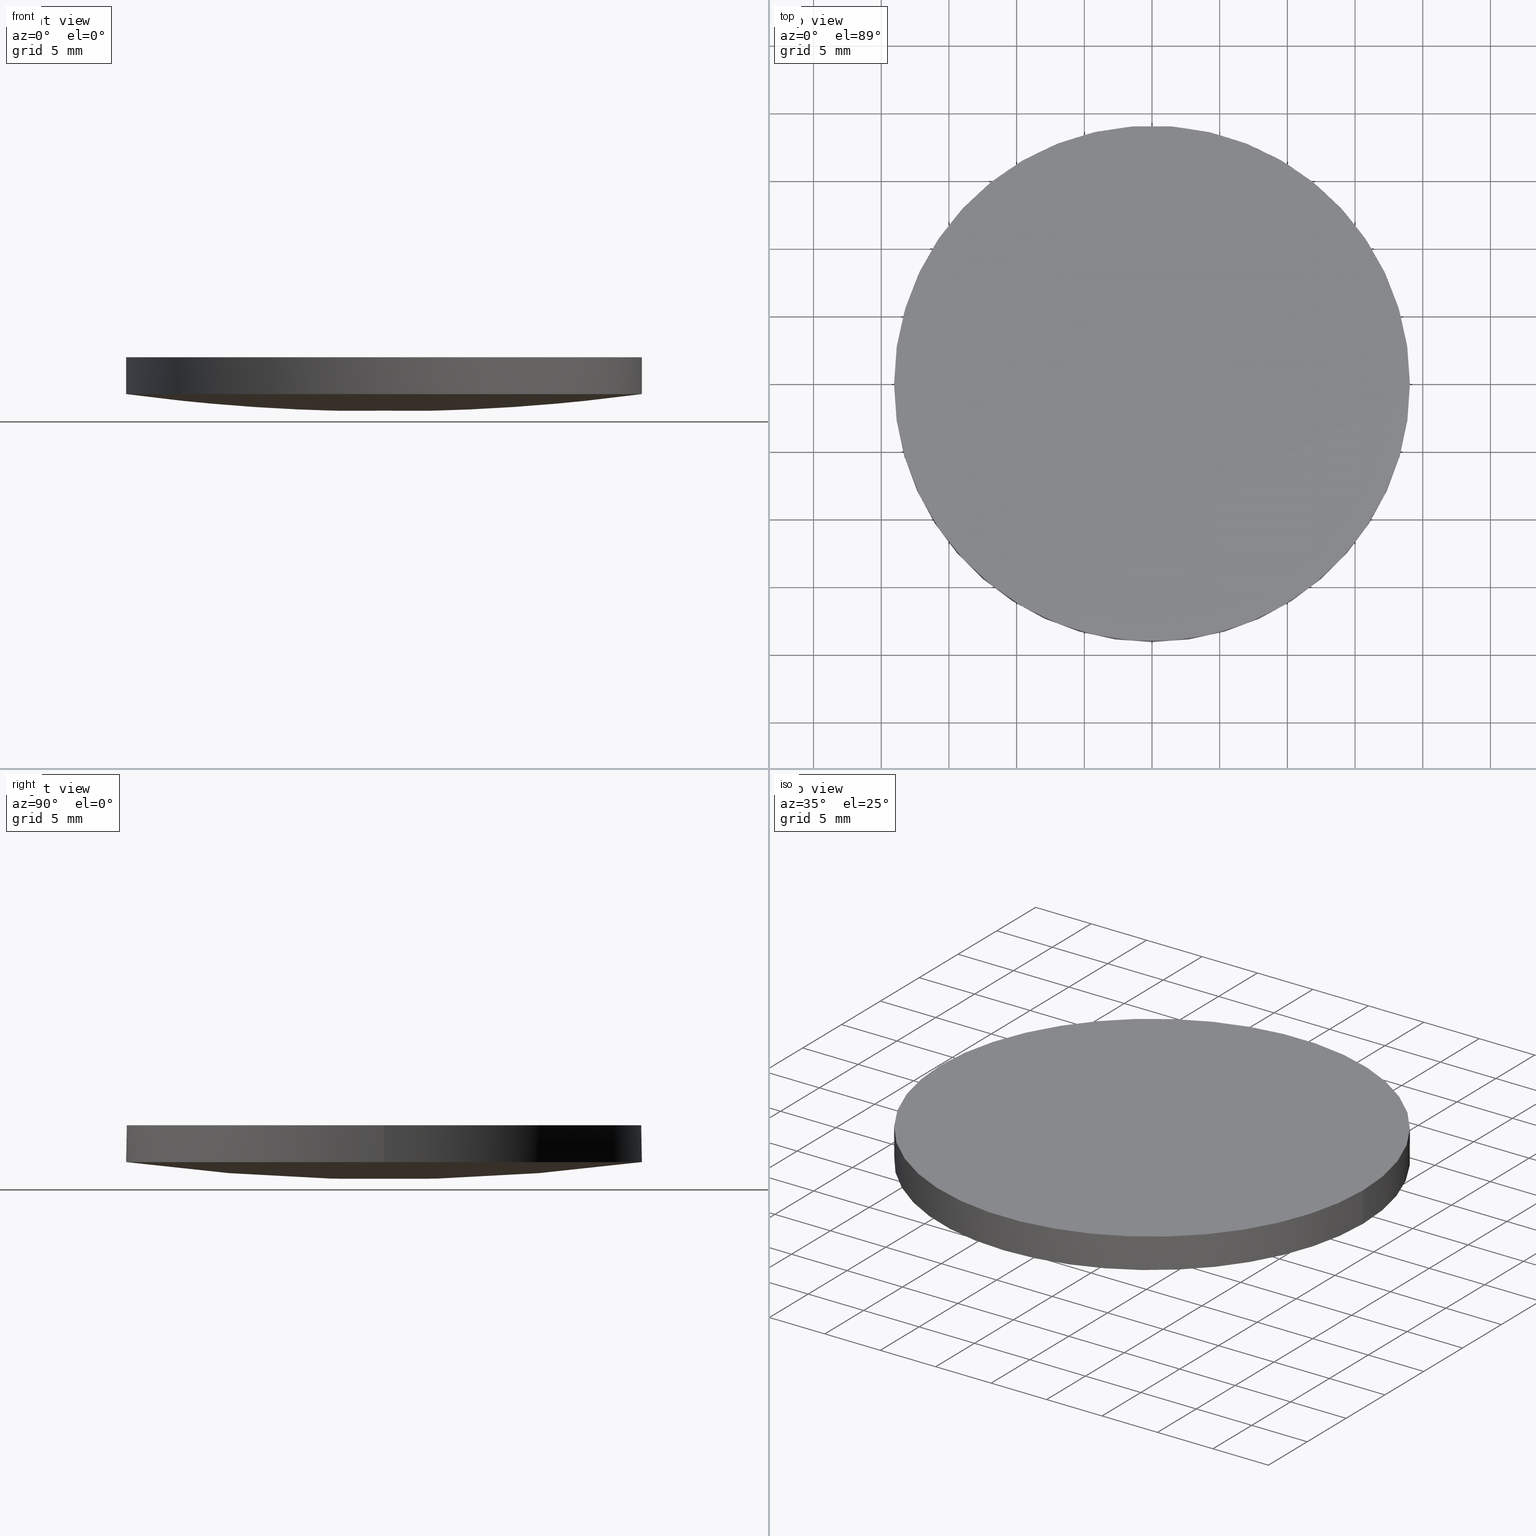
[diagram: canonical four-view strip — front | top / right | iso, engineering-drawing reading convention]
A machine part, canonical four-view strip (front | top / right | iso — engineering-drawing reading convention). The complete STEP part file that produces these views, byte-faithful:
ISO-10303-21;
HEADER;
FILE_DESCRIPTION (( 'STEP AP203' ),
    '1' );
FILE_NAME ('110-1427E UVFS pl-cx 38.1 F300.STEP',
    '2018-12-13T15:05:20',
    ( '' ),
    ( '' ),
    'SwSTEP 2.0',
    'SolidWorks 2017',
    '' );
FILE_SCHEMA (( 'CONFIG_CONTROL_DESIGN' ));
ENDSEC;

DATA;
#1 = CARTESIAN_POINT ( 'NONE',  ( 6.431727402686249200, 6.465189879962315100, -0.4383888507263622400 ) ) ;
#2 = CC_DESIGN_APPROVAL ( #220, ( #167 ) ) ;
#3 = PERSON_AND_ORGANIZATION_ROLE ( 'design_owner' ) ;
#4 = APPROVAL_STATUS ( 'not_yet_approved' ) ;
#5 = APPROVAL_PERSON_ORGANIZATION ( #123, #220, #98 ) ;
#6 = AXIS2_PLACEMENT_3D ( 'NONE', #113, #148, #136 ) ;
#7 = ORIENTED_EDGE ( 'NONE', *, *, #100, .F. ) ;
#8 = CC_DESIGN_PERSON_AND_ORGANIZATION_ASSIGNMENT ( #62, #3, ( #25 ) ) ;
#9 = DIRECTION ( 'NONE',  ( 1.000000000000000000, 0.0000000000000000000, 0.0000000000000000000 ) ) ;
#10 = CC_DESIGN_APPROVAL ( #228, ( #152 ) ) ;
#11 = LOCAL_TIME ( 17, 5, 20.00000000000000000, #31 ) ;
#12 = ORIENTED_EDGE ( 'NONE', *, *, #69, .T. ) ;
#13 = DIRECTION ( 'NONE',  ( -0.0000000000000000000, -0.0000000000000000000, -1.000000000000000000 ) ) ;
#14 = DIRECTION ( 'NONE',  ( 1.000000000000000000, 0.0000000000000000000, 2.056625150099659900E-016 ) ) ;
#15 = CARTESIAN_POINT ( 'NONE',  ( 2.909977727114287100E-014, 19.27720950375859800, 1.307140838315845600 ) ) ;
#16 = EDGE_LOOP ( 'NONE', ( #151, #12, #138, #203, #189 ) ) ;
#17 = CARTESIAN_POINT ( 'NONE',  ( 2.945876729701585200E-014, -6.465189879962331100, -0.4383888507263599100 ) ) ;
#18 = SECURITY_CLASSIFICATION_LEVEL ( 'unclassified' ) ;
#19 =( NAMED_UNIT ( * ) PLANE_ANGLE_UNIT ( ) SI_UNIT ( $, .RADIAN. ) );
#20 = APPROVAL_ROLE ( '' ) ;
#21 = PERSON_AND_ORGANIZATION_ROLE ( 'design_supplier' ) ;
#22 = VERTEX_POINT ( 'NONE', #72 ) ;
#23 = EDGE_CURVE ( 'NONE', #75, #175, #190, .T. ) ;
#24 = FACE_OUTER_BOUND ( 'NONE', #64, .T. ) ;
#25 = PRODUCT ( '110-1427E UVFS pl-cx 38.1 F300', '110-1427E UVFS pl-cx 38.1 F300', '', ( #185 ) ) ;
#26 = CYLINDRICAL_SURFACE ( 'NONE', #96, 19.05000000000000100 ) ;
#27 = ADVANCED_FACE ( 'NONE', ( #160 ), #227, .T. ) ;
#28 = VERTEX_POINT ( 'NONE', #86 ) ;
#29 = CARTESIAN_POINT ( 'NONE',  ( -4.662936703425659800E-015, -8.881784197001250400E-016, 1.276371230808250000 ) ) ;
#30 = AXIS2_PLACEMENT_3D ( 'NONE', #29, #161, #194 ) ;
#31 = COORDINATED_UNIVERSAL_TIME_OFFSET ( 2, 0, .AHEAD. ) ;
#32 = CARTESIAN_POINT ( 'NONE',  ( 19.04999999999999700, -8.881784197001250400E-016, 1.276371230808250000 ) ) ;
#33 =( BOUNDED_SURFACE ( )  B_SPLINE_SURFACE ( 3, 3, ( 
 ( #143, #105, #229, #166 ),
 ( #17, #131, #117, #215 ),
 ( #182, #1, #34, #198 ),
 ( #15, #234, #92, #153 ) ),
 .UNSPECIFIED., .F., .F., .F. ) 
 B_SPLINE_SURFACE_WITH_KNOTS ( ( 4, 4 ),
 ( 4, 4 ),
 ( 0.0000000000000000000, 1.000000000000000000 ),
 ( 0.0000000000000000000, 1.000000000000000000 ),
 .UNSPECIFIED. ) 
 GEOMETRIC_REPRESENTATION_ITEM ( )  RATIONAL_B_SPLINE_SURFACE ( (
 ( 1.000000000000000000, 0.9984906929497666700, 0.9984906929497666700, 1.000000000000000000),
 ( 0.9938975684485722400, 0.9923974718413030000, 0.9923974718413030000, 0.9938975684485722400),
 ( 0.9938975684485722400, 0.9923974718413030000, 0.9923974718413030000, 0.9938975684485722400),
 ( 1.000000000000000000, 0.9984906929497666700, 0.9984906929497666700, 1.000000000000000000) ) ) 
 REPRESENTATION_ITEM ( '' )  SURFACE ( )  );
#34 = CARTESIAN_POINT ( 'NONE',  ( 12.84889362810139200, 6.465189879962315100, -0.005844034717610155900 ) ) ;
#35 = COORDINATED_UNIVERSAL_TIME_OFFSET ( 2, 0, .AHEAD. ) ;
#36 = CARTESIAN_POINT ( 'NONE',  ( 19.04999999999999700, -8.881784197001250400E-016, 4.000000000000000000 ) ) ;
#37 = CARTESIAN_POINT ( 'NONE',  ( -12.84889362810145000, -6.465189879962330200, -0.005844034717618937900 ) ) ;
#38 = CARTESIAN_POINT ( 'NONE',  ( -18.98819399149936200, 19.27720950375859800, 2.587027409410580500 ) ) ;
#39 = CALENDAR_DATE ( 2018, 13, 12 ) ;
#40 = PRODUCT_DEFINITION_SHAPE ( 'NONE', 'NONE',  #127 ) ;
#41 = PERSON_AND_ORGANIZATION_ROLE ( 'classification_officer' ) ;
#42 = APPROVAL_ROLE ( '' ) ;
#43 = FACE_OUTER_BOUND ( 'NONE', #16, .T. ) ;
#44 = ORIENTED_EDGE ( 'NONE', *, *, #193, .T. ) ;
#45 = EDGE_CURVE ( 'NONE', #75, #28, #82, .T. ) ;
#46 =( BOUNDED_SURFACE ( )  B_SPLINE_SURFACE ( 3, 3, ( 
 ( #114, #59, #56, #93 ),
 ( #200, #37, #76, #91 ),
 ( #95, #217, #181, #149 ),
 ( #38, #55, #216, #235 ) ),
 .UNSPECIFIED., .F., .F., .T. ) 
 B_SPLINE_SURFACE_WITH_KNOTS ( ( 4, 4 ),
 ( 4, 4 ),
 ( 0.0000000000000000000, 1.000000000000000000 ),
 ( 0.0000000000000000000, 1.000000000000000000 ),
 .UNSPECIFIED. ) 
 GEOMETRIC_REPRESENTATION_ITEM ( )  RATIONAL_B_SPLINE_SURFACE ( (
 ( 1.000000000000000000, 0.9984906929497666700, 0.9984906929497666700, 1.000000000000000000),
 ( 0.9938975684485722400, 0.9923974718413030000, 0.9923974718413030000, 0.9938975684485722400),
 ( 0.9938975684485722400, 0.9923974718413030000, 0.9923974718413030000, 0.9938975684485722400),
 ( 1.000000000000000000, 0.9984906929497666700, 0.9984906929497666700, 1.000000000000000000) ) ) 
 REPRESENTATION_ITEM ( '' )  SURFACE ( )  );
#47 = APPROVAL_DATE_TIME ( #67, #65 ) ;
#48 = CC_DESIGN_APPROVAL ( #65, ( #127 ) ) ;
#49 = APPROVAL_PERSON_ORGANIZATION ( #146, #65, #20 ) ;
#50 = CLOSED_SHELL ( 'NONE', ( #106, #176, #158, #27, #191 ) ) ;
#51 = DESIGN_CONTEXT ( 'detailed design', #204, 'design' ) ;
#52 = CC_DESIGN_SECURITY_CLASSIFICATION ( #152, ( #167 ) ) ;
#53 = CARTESIAN_POINT ( 'NONE',  ( -4.662936703425659800E-015, -8.881784197001250400E-016, 1.276371230808250000 ) ) ;
#54 = DIRECTION ( 'NONE',  ( 0.0000000000000000000, 0.0000000000000000000, 1.000000000000000000 ) ) ;
#55 = CARTESIAN_POINT ( 'NONE',  ( -12.69231461685210300, 19.27720950375859800, 1.734414582622074300 ) ) ;
#56 = CARTESIAN_POINT ( 'NONE',  ( -6.353349174452251400, -19.27720950375861300, 1.307140838315827200 ) ) ;
#57 = AXIS2_PLACEMENT_3D ( 'NONE', #53, #87, #9 ) ;
#58 = ORIENTED_EDGE ( 'NONE', *, *, #193, .F. ) ;
#59 = CARTESIAN_POINT ( 'NONE',  ( -12.69231461685210300, -19.27720950375861300, 1.734414582622074300 ) ) ;
#60 = CALENDAR_DATE ( 2018, 13, 12 ) ;
#61 = APPLICATION_PROTOCOL_DEFINITION ( 'international standard', 'config_control_design', 1994, #204 ) ;
#62 = PERSON_AND_ORGANIZATION ( #222, #231 ) ;
#63 = APPLICATION_PROTOCOL_DEFINITION ( 'international standard', 'config_control_design', 1994, #119 ) ;
#64 = EDGE_LOOP ( 'NONE', ( #58, #68, #196 ) ) ;
#65 = APPROVAL ( #168, 'UNSPECIFIED' ) ;
#66 = COORDINATED_UNIVERSAL_TIME_OFFSET ( 2, 0, .AHEAD. ) ;
#67 = DATE_AND_TIME ( #121, #84 ) ;
#68 = ORIENTED_EDGE ( 'NONE', *, *, #224, .T. ) ;
#69 = EDGE_CURVE ( 'NONE', #107, #22, #90, .T. ) ;
#70 = DIRECTION ( 'NONE',  ( 0.0000000000000000000, 0.0000000000000000000, 1.000000000000000000 ) ) ;
#71 = EDGE_CURVE ( 'NONE', #208, #75, #79, .T. ) ;
#72 = CARTESIAN_POINT ( 'NONE',  ( -19.05000000000000400, 1.444773732675583000E-015, 4.000000000000000000 ) ) ;
#73 = LOCAL_TIME ( 17, 5, 20.00000000000000000, #169 ) ;
#74 = CARTESIAN_POINT ( 'NONE',  ( -4.662936703425659800E-015, -8.881784197001250400E-016, 1.276371230808250000 ) ) ;
#75 = VERTEX_POINT ( 'NONE', #32 ) ;
#76 = CARTESIAN_POINT ( 'NONE',  ( -6.431727402686268700, -6.465189879962330200, -0.4383888507263787900 ) ) ;
#77 = DATE_AND_TIME ( #140, #11 ) ;
#78 = CARTESIAN_POINT ( 'NONE',  ( -4.662936703425659800E-015, -8.881784197001250400E-016, 1.276371230808250000 ) ) ;
#79 = CIRCLE ( 'NONE', #30, 19.05000000000000100 ) ;
#80 = MANIFOLD_SOLID_BREP ( 'Imported1', #50 ) ;
#81 = EDGE_CURVE ( 'NONE', #107, #208, #139, .T. ) ;
#82 = CIRCLE ( 'NONE', #57, 19.05000000000000100 ) ;
#83 = AXIS2_PLACEMENT_3D ( 'NONE', #211, #54, #144 ) ;
#84 = LOCAL_TIME ( 17, 5, 20.00000000000000000, #66 ) ;
#85 = DIRECTION ( 'NONE',  ( 1.000000000000000000, 0.0000000000000000000, 0.0000000000000000000 ) ) ;
#86 = CARTESIAN_POINT ( 'NONE',  ( 2.910610542600875300E-014, -19.04999999999994000, 1.276371230808255100 ) ) ;
#87 = DIRECTION ( 'NONE',  ( -0.0000000000000000000, -0.0000000000000000000, -1.000000000000000000 ) ) ;
#88 = PRODUCT_RELATED_PRODUCT_CATEGORY ( 'detail', '', ( #25 ) ) ;
#89 = CARTESIAN_POINT ( 'NONE',  ( 2.910610542600875300E-014, 19.04999999999991500, 1.276371230808255100 ) ) ;
#90 = LINE ( 'NONE', #145, #202 ) ;
#91 = CARTESIAN_POINT ( 'NONE',  ( -3.469446951953614200E-015, -6.465189879962331100, -0.4383888507263790600 ) ) ;
#92 = CARTESIAN_POINT ( 'NONE',  ( 12.69231461685204500, 19.27720950375859800, 1.734414582622086300 ) ) ;
#93 = CARTESIAN_POINT ( 'NONE',  ( -3.469446951953614200E-015, -19.27720950375861300, 1.307140838315826700 ) ) ;
#94 = CC_DESIGN_PERSON_AND_ORGANIZATION_ASSIGNMENT ( #174, #205, ( #127 ) ) ;
#95 = CARTESIAN_POINT ( 'NONE',  ( -19.22244225356593700, 6.465189879962316900, 0.8572870684788609400 ) ) ;
#96 = AXIS2_PLACEMENT_3D ( 'NONE', #74, #163, #197 ) ;
#97 = DATE_TIME_ROLE ( 'creation_date' ) ;
#98 = APPROVAL_ROLE ( '' ) ;
#99 = APPROVAL_STATUS ( 'not_yet_approved' ) ;
#100 = EDGE_CURVE ( 'NONE', #22, #175, #221, .T. ) ;
#101 = DATE_AND_TIME ( #60, #73 ) ;
#102 = APPROVAL_DATE_TIME ( #101, #228 ) ;
#103 = CIRCLE ( 'NONE', #142, 19.05000000000000100 ) ;
#104 = ORIENTED_EDGE ( 'NONE', *, *, #23, .T. ) ;
#105 = CARTESIAN_POINT ( 'NONE',  ( 6.353349174452232800, -19.27720950375861300, 1.307140838315846700 ) ) ;
#106 = ADVANCED_FACE ( 'NONE', ( #137 ), #33, .T. ) ;
#107 = VERTEX_POINT ( 'NONE', #108 ) ;
#108 = CARTESIAN_POINT ( 'NONE',  ( -19.05000000000000400, 1.444773732675583000E-015, 1.276371230808250000 ) ) ;
#109 = DIRECTION ( 'NONE',  ( -0.0000000000000000000, -0.0000000000000000000, -1.000000000000000000 ) ) ;
#110 = DATE_AND_TIME ( #179, #171 ) ;
#111 = DIRECTION ( 'NONE',  ( 1.000000000000000000, 0.0000000000000000000, 0.0000000000000000000 ) ) ;
#112 = DIRECTION ( 'NONE',  ( 1.000000000000000000, 0.0000000000000000000, -0.0000000000000000000 ) ) ;
#113 = CARTESIAN_POINT ( 'NONE',  ( 0.0000000000000000000, 0.0000000000000000000, 0.0000000000000000000 ) ) ;
#114 = CARTESIAN_POINT ( 'NONE',  ( -18.98819399149936200, -19.27720950375861300, 2.587027409410580500 ) ) ;
#115 = EDGE_LOOP ( 'NONE', ( #141, #165, #214, #104, #162 ) ) ;
#116 = AXIS2_PLACEMENT_3D ( 'NONE', #226, #109, #111 ) ;
#117 = CARTESIAN_POINT ( 'NONE',  ( 12.84889362810139200, -6.465189879962330200, -0.005844034717606577100 ) ) ;
#118 =( NAMED_UNIT ( * ) SI_UNIT ( $, .STERADIAN. ) SOLID_ANGLE_UNIT ( ) );
#119 = APPLICATION_CONTEXT ( 'configuration controlled 3d designs of mechanical parts and assemblies' ) ;
#120 = CIRCLE ( 'NONE', #201, 142.7999999999999800 ) ;
#121 = CALENDAR_DATE ( 2018, 13, 12 ) ;
#122 = AXIS2_PLACEMENT_3D ( 'NONE', #233, #129, #164 ) ;
#123 = PERSON_AND_ORGANIZATION ( #222, #231 ) ;
#124 = PERSON_AND_ORGANIZATION ( #222, #231 ) ;
#125 = ORIENTED_EDGE ( 'NONE', *, *, #71, .T. ) ;
#126 = CC_DESIGN_PERSON_AND_ORGANIZATION_ASSIGNMENT ( #218, #41, ( #152 ) ) ;
#127 = PRODUCT_DEFINITION ( 'UNKNOWN', '', #167, #51 ) ;
#128 = PERSON_AND_ORGANIZATION ( #222, #231 ) ;
#129 = DIRECTION ( 'NONE',  ( -0.0000000000000000000, -0.0000000000000000000, -1.000000000000000000 ) ) ;
#130 = DIRECTION ( 'NONE',  ( 0.0000000000000000000, 0.0000000000000000000, 1.000000000000000000 ) ) ;
#131 = CARTESIAN_POINT ( 'NONE',  ( 6.431727402686249200, -6.465189879962330200, -0.4383888507263585800 ) ) ;
#132 = AXIS2_PLACEMENT_3D ( 'NONE', #213, #130, #112 ) ;
#133 = PERSON_AND_ORGANIZATION ( #222, #231 ) ;
#134 =( GEOMETRIC_REPRESENTATION_CONTEXT ( 3 ) GLOBAL_UNCERTAINTY_ASSIGNED_CONTEXT ( ( #186 ) ) GLOBAL_UNIT_ASSIGNED_CONTEXT ( ( #170, #19, #118 ) ) REPRESENTATION_CONTEXT ( 'NONE', 'WORKASPACE' ) );
#135 = DIRECTION ( 'NONE',  ( 1.000000000000000000, 0.0000000000000000000, 0.0000000000000000000 ) ) ;
#136 = DIRECTION ( 'NONE',  ( 1.000000000000000000, 0.0000000000000000000, 0.0000000000000000000 ) ) ;
#137 = FACE_OUTER_BOUND ( 'NONE', #199, .T. ) ;
#138 = ORIENTED_EDGE ( 'NONE', *, *, #100, .T. ) ;
#139 = CIRCLE ( 'NONE', #116, 19.05000000000000100 ) ;
#140 = CALENDAR_DATE ( 2018, 13, 12 ) ;
#141 = ORIENTED_EDGE ( 'NONE', *, *, #69, .F. ) ;
#142 = AXIS2_PLACEMENT_3D ( 'NONE', #78, #155, #135 ) ;
#143 = CARTESIAN_POINT ( 'NONE',  ( 2.909977727114287100E-014, -19.27720950375861300, 1.307140838315845600 ) ) ;
#144 = DIRECTION ( 'NONE',  ( 1.000000000000000000, 0.0000000000000000000, 0.0000000000000000000 ) ) ;
#145 = CARTESIAN_POINT ( 'NONE',  ( -19.05000000000000400, 1.444773732675583000E-015, 1.276371230808250000 ) ) ;
#146 = PERSON_AND_ORGANIZATION ( #222, #231 ) ;
#147 = DIRECTION ( 'NONE',  ( 0.0000000000000000000, -1.000000000000000000, 0.0000000000000000000 ) ) ;
#148 = DIRECTION ( 'NONE',  ( 0.0000000000000000000, 0.0000000000000000000, 1.000000000000000000 ) ) ;
#149 = CARTESIAN_POINT ( 'NONE',  ( -3.469446951953614200E-015, 6.465189879962316900, -0.4383888507263824500 ) ) ;
#150 = PLANE ( 'NONE',  #132 ) ;
#151 = ORIENTED_EDGE ( 'NONE', *, *, #81, .F. ) ;
#152 = SECURITY_CLASSIFICATION ( '', '', #18 ) ;
#153 = CARTESIAN_POINT ( 'NONE',  ( 18.98819399149926200, 19.27720950375859800, 2.587027409410582700 ) ) ;
#154 = CIRCLE ( 'NONE', #122, 19.05000000000000100 ) ;
#155 = DIRECTION ( 'NONE',  ( -0.0000000000000000000, -0.0000000000000000000, -1.000000000000000000 ) ) ;
#156 = EDGE_LOOP ( 'NONE', ( #209, #7 ) ) ;
#157 = CC_DESIGN_DATE_AND_TIME_ASSIGNMENT ( #183, #97, ( #127 ) ) ;
#158 = ADVANCED_FACE ( 'NONE', ( #24 ), #46, .T. ) ;
#159 = APPROVAL_DATE_TIME ( #77, #220 ) ;
#160 = FACE_OUTER_BOUND ( 'NONE', #115, .T. ) ;
#161 = DIRECTION ( 'NONE',  ( -0.0000000000000000000, -0.0000000000000000000, -1.000000000000000000 ) ) ;
#162 = ORIENTED_EDGE ( 'NONE', *, *, #210, .T. ) ;
#163 = DIRECTION ( 'NONE',  ( 0.0000000000000000000, 0.0000000000000000000, 1.000000000000000000 ) ) ;
#164 = DIRECTION ( 'NONE',  ( 1.000000000000000000, 0.0000000000000000000, 0.0000000000000000000 ) ) ;
#165 = ORIENTED_EDGE ( 'NONE', *, *, #224, .F. ) ;
#166 = CARTESIAN_POINT ( 'NONE',  ( 18.98819399149926200, -19.27720950375861300, 2.587027409410582700 ) ) ;
#167 = PRODUCT_DEFINITION_FORMATION_WITH_SPECIFIED_SOURCE ( 'ANY', '', #25, .NOT_KNOWN. ) ;
#168 = APPROVAL_STATUS ( 'not_yet_approved' ) ;
#169 = COORDINATED_UNIVERSAL_TIME_OFFSET ( 2, 0, .AHEAD. ) ;
#170 =( LENGTH_UNIT ( ) NAMED_UNIT ( * ) SI_UNIT ( .MILLI., .METRE. ) );
#171 = LOCAL_TIME ( 17, 5, 20.00000000000000000, #219 ) ;
#172 = ORIENTED_EDGE ( 'NONE', *, *, #45, .T. ) ;
#173 = APPROVAL_PERSON_ORGANIZATION ( #128, #228, #42 ) ;
#174 = PERSON_AND_ORGANIZATION ( #222, #231 ) ;
#175 = VERTEX_POINT ( 'NONE', #36 ) ;
#176 = ADVANCED_FACE ( 'NONE', ( #43 ), #26, .T. ) ;
#177 = CC_DESIGN_DATE_AND_TIME_ASSIGNMENT ( #110, #184, ( #152 ) ) ;
#178 = LOCAL_TIME ( 17, 5, 20.00000000000000000, #35 ) ;
#179 = CALENDAR_DATE ( 2018, 13, 12 ) ;
#180 = CC_DESIGN_PERSON_AND_ORGANIZATION_ASSIGNMENT ( #133, #187, ( #167 ) ) ;
#181 = CARTESIAN_POINT ( 'NONE',  ( -6.431727402686268700, 6.465189879962315100, -0.4383888507263822300 ) ) ;
#182 = CARTESIAN_POINT ( 'NONE',  ( 2.945876729701585200E-014, 6.465189879962316900, -0.4383888507263635800 ) ) ;
#183 = DATE_AND_TIME ( #39, #178 ) ;
#184 = DATE_TIME_ROLE ( 'classification_date' ) ;
#185 = MECHANICAL_CONTEXT ( 'NONE', #119, 'mechanical' ) ;
#186 = UNCERTAINTY_MEASURE_WITH_UNIT (LENGTH_MEASURE( 1.000000000000000100E-005 ), #170, 'distance_accuracy_value', 'NONE');
#187 = PERSON_AND_ORGANIZATION_ROLE ( 'creator' ) ;
#188 = VECTOR ( 'NONE', #230, 1000.000000000000000 ) ;
#189 = ORIENTED_EDGE ( 'NONE', *, *, #71, .F. ) ;
#190 = LINE ( 'NONE', #192, #188 ) ;
#191 = ADVANCED_FACE ( 'NONE', ( #195 ), #150, .T. ) ;
#192 = CARTESIAN_POINT ( 'NONE',  ( 19.04999999999999700, -8.881784197001250400E-016, 1.276371230808250000 ) ) ;
#193 = EDGE_CURVE ( 'NONE', #28, #208, #120, .T. ) ;
#194 = DIRECTION ( 'NONE',  ( 1.000000000000000000, 0.0000000000000000000, 0.0000000000000000000 ) ) ;
#195 = FACE_OUTER_BOUND ( 'NONE', #156, .T. ) ;
#196 = ORIENTED_EDGE ( 'NONE', *, *, #81, .T. ) ;
#197 = DIRECTION ( 'NONE',  ( 1.000000000000000000, 0.0000000000000000000, 0.0000000000000000000 ) ) ;
#198 = CARTESIAN_POINT ( 'NONE',  ( 19.22244225356583100, 6.465189879962316900, 0.8572870684788631600 ) ) ;
#199 = EDGE_LOOP ( 'NONE', ( #172, #44, #125 ) ) ;
#200 = CARTESIAN_POINT ( 'NONE',  ( -19.22244225356593700, -6.465189879962331100, 0.8572870684788646000 ) ) ;
#201 = AXIS2_PLACEMENT_3D ( 'NONE', #232, #14, #147 ) ;
#202 = VECTOR ( 'NONE', #70, 1000.000000000000000 ) ;
#203 = ORIENTED_EDGE ( 'NONE', *, *, #23, .F. ) ;
#204 = APPLICATION_CONTEXT ( 'configuration controlled 3d designs of mechanical parts and assemblies' ) ;
#205 = PERSON_AND_ORGANIZATION_ROLE ( 'creator' ) ;
#206 = CC_DESIGN_PERSON_AND_ORGANIZATION_ASSIGNMENT ( #124, #21, ( #167 ) ) ;
#207 = AXIS2_PLACEMENT_3D ( 'NONE', #225, #13, #85 ) ;
#208 = VERTEX_POINT ( 'NONE', #89 ) ;
#209 = ORIENTED_EDGE ( 'NONE', *, *, #210, .F. ) ;
#210 = EDGE_CURVE ( 'NONE', #175, #22, #154, .T. ) ;
#211 = CARTESIAN_POINT ( 'NONE',  ( -4.662936703425659800E-015, -8.881784197001250400E-016, 1.276371230808250000 ) ) ;
#212 = SHAPE_DEFINITION_REPRESENTATION ( #40, #223 ) ;
#213 = CARTESIAN_POINT ( 'NONE',  ( 0.0000000000000000000, 39.06600000000000300, 4.000000000000000000 ) ) ;
#214 = ORIENTED_EDGE ( 'NONE', *, *, #45, .F. ) ;
#215 = CARTESIAN_POINT ( 'NONE',  ( 19.22244225356583100, -6.465189879962331100, 0.8572870684788668200 ) ) ;
#216 = CARTESIAN_POINT ( 'NONE',  ( -6.353349174452251400, 19.27720950375859800, 1.307140838315827200 ) ) ;
#217 = CARTESIAN_POINT ( 'NONE',  ( -12.84889362810145000, 6.465189879962315100, -0.005844034717622623300 ) ) ;
#218 = PERSON_AND_ORGANIZATION ( #222, #231 ) ;
#219 = COORDINATED_UNIVERSAL_TIME_OFFSET ( 2, 0, .AHEAD. ) ;
#220 = APPROVAL ( #99, 'UNSPECIFIED' ) ;
#221 = CIRCLE ( 'NONE', #207, 19.05000000000000100 ) ;
#222 = PERSON ( 'UNSPECIFIED', 'UNSPECIFIED', 'UNSPECIFIED', ('UNSPECIFIED'), ('UNSPECIFIED'), ('UNSPECIFIED') ) ;
#223 = ADVANCED_BREP_SHAPE_REPRESENTATION ( '110-1427E UVFS pl-cx 38.1 F300', ( #80, #6 ), #134 ) ;
#224 = EDGE_CURVE ( 'NONE', #28, #107, #103, .T. ) ;
#225 = CARTESIAN_POINT ( 'NONE',  ( -4.662936703425659800E-015, -8.881784197001250400E-016, 4.000000000000000000 ) ) ;
#226 = CARTESIAN_POINT ( 'NONE',  ( -4.662936703425659800E-015, -8.881784197001250400E-016, 1.276371230808250000 ) ) ;
#227 = CYLINDRICAL_SURFACE ( 'NONE', #83, 19.05000000000000100 ) ;
#228 = APPROVAL ( #4, 'UNSPECIFIED' ) ;
#229 = CARTESIAN_POINT ( 'NONE',  ( 12.69231461685204500, -19.27720950375861300, 1.734414582622086300 ) ) ;
#230 = DIRECTION ( 'NONE',  ( 0.0000000000000000000, 0.0000000000000000000, 1.000000000000000000 ) ) ;
#231 = ORGANIZATION ( 'UNSPECIFIED', 'UNSPECIFIED', '' ) ;
#232 = CARTESIAN_POINT ( 'NONE',  ( 0.0000000000000000000, -2.842170943040400100E-014, 142.8000000000000100 ) ) ;
#233 = CARTESIAN_POINT ( 'NONE',  ( -4.662936703425659800E-015, -8.881784197001250400E-016, 4.000000000000000000 ) ) ;
#234 = CARTESIAN_POINT ( 'NONE',  ( 6.353349174452232800, 19.27720950375859800, 1.307140838315846700 ) ) ;
#235 = CARTESIAN_POINT ( 'NONE',  ( -3.469446951953614200E-015, 19.27720950375859800, 1.307140838315826700 ) ) ;
ENDSEC;
END-ISO-10303-21;
